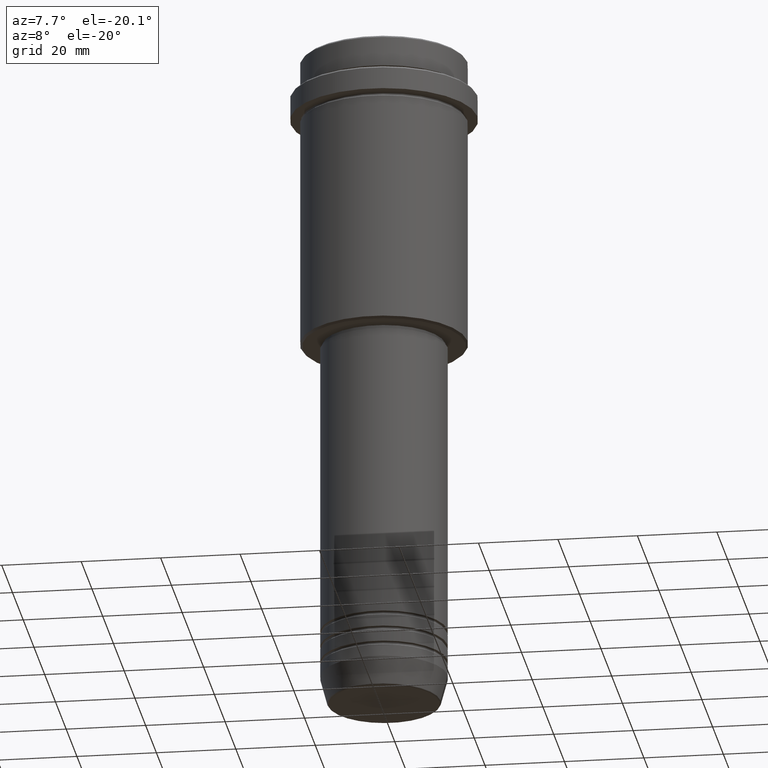
[diagram: clean part render]
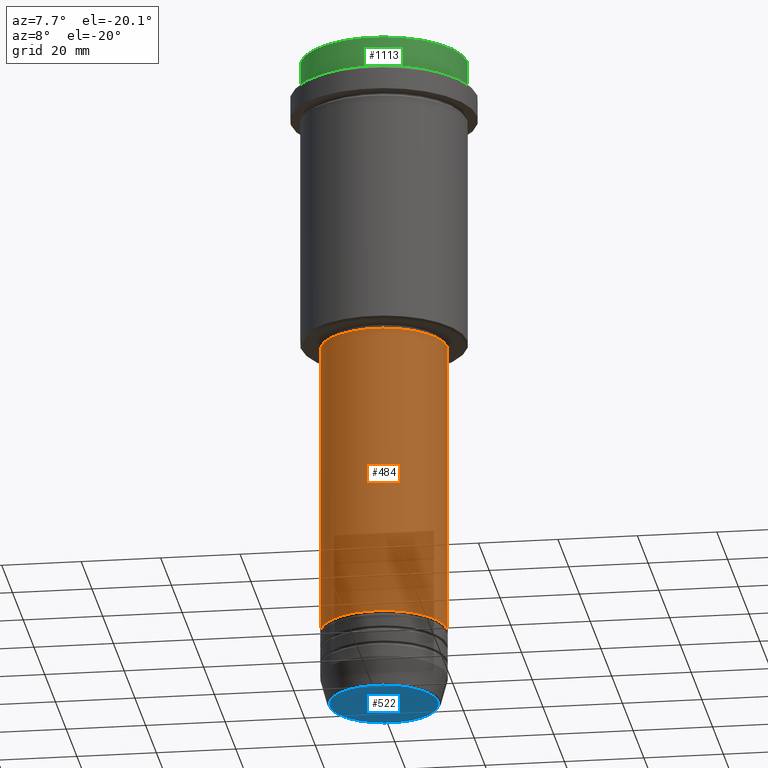
[diagram: same view with three faces highlighted in distinct colors, each labeled with its STEP entity id]
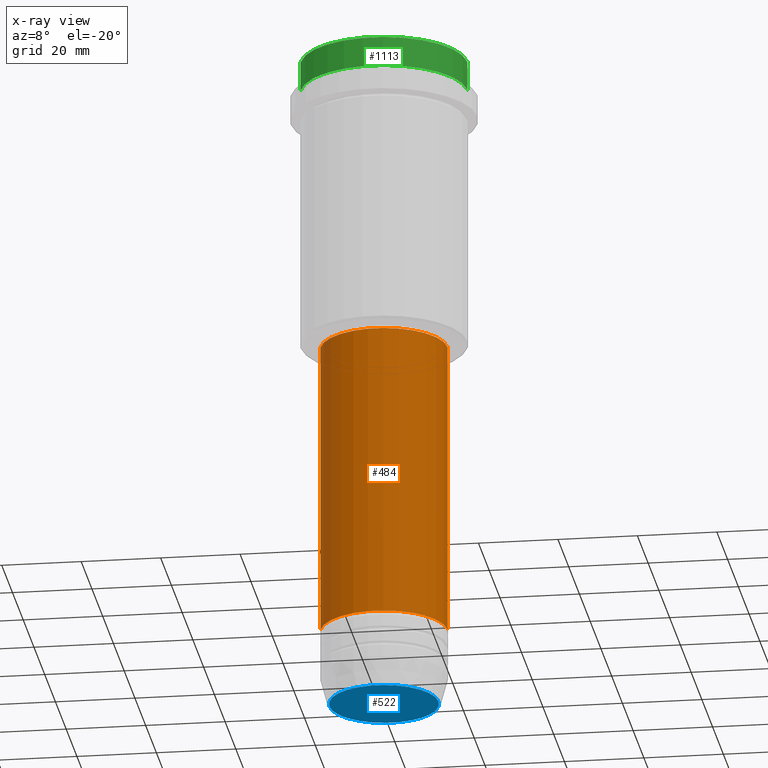
[diagram: x-ray of the same camera — body ghosted, the three highlighted faces saturated]
A machine part, auxiliary view with three faces highlighted in distinct colors.
The next image is the same camera in x-ray (body ghosted, the three faces saturated) — at least one of them is partly hidden behind the body in this view.
Their STEP definitions:

[orange] entity #484 — the highlighted cylindrical surface (partial cylindrical patch) has radius 16 mm, axis along (-0, -0, 1).
#43 = CARTESIAN_POINT ( 'NONE',  ( 16.00000000000000000, 0.000000000000000000, 0.000000000000000000 ) ) ;
#93 = CARTESIAN_POINT ( 'NONE',  ( 0.000000000000000000, 0.000000000000000000, 0.000000000000000000 ) ) ;
#108 = DIRECTION ( 'NONE',  ( 1.000000000000000000, 0.000000000000000000, 0.000000000000000000 ) ) ;
#115 = EDGE_CURVE ( 'NONE', #126, #898, #637, .T. ) ;
#126 = VERTEX_POINT ( 'NONE', #663 ) ;
#159 = DIRECTION ( 'NONE',  ( -0.000000000000000000, -0.000000000000000000, 1.000000000000000000 ) ) ;
#173 = AXIS2_PLACEMENT_3D ( 'NONE', #396, #1164, #630 ) ;
#277 = FACE_OUTER_BOUND ( 'NONE', #464, .T. ) ;
#278 = ORIENTED_EDGE ( 'NONE', *, *, #908, .F. ) ;
#322 = DIRECTION ( 'NONE',  ( -0.000000000000000000, -0.000000000000000000, 1.000000000000000000 ) ) ;
#396 = CARTESIAN_POINT ( 'NONE',  ( 0.000000000000000000, 0.000000000000000000, -76.00000000000001421 ) ) ;
#464 = EDGE_LOOP ( 'NONE', ( #997, #1146, #1352, #278 ) ) ;
#476 = VECTOR ( 'NONE', #159, 1000.000000000000000 ) ;
#484 = ADVANCED_FACE ( 'NONE', ( #277 ), #726, .T. ) ;
#500 = VECTOR ( 'NONE', #1016, 1000.000000000000000 ) ;
#571 = AXIS2_PLACEMENT_3D ( 'NONE', #93, #1099, #108 ) ;
#572 = CIRCLE ( 'NONE', #173, 16.00000000000000355 ) ;
#630 = DIRECTION ( 'NONE',  ( 1.000000000000000000, 0.000000000000000000, 0.000000000000000000 ) ) ;
#637 = CIRCLE ( 'NONE', #750, 16.00000000000000000 ) ;
#663 = CARTESIAN_POINT ( 'NONE',  ( -16.00000000000000000, 1.959434878635765131E-15, -150.9999999999999147 ) ) ;
#719 = VERTEX_POINT ( 'NONE', #1219 ) ;
#726 = CYLINDRICAL_SURFACE ( 'NONE', #571, 16.00000000000000000 ) ;
#750 = AXIS2_PLACEMENT_3D ( 'NONE', #1400, #322, #1388 ) ;
#815 = LINE ( 'NONE', #1145, #476 ) ;
#898 = VERTEX_POINT ( 'NONE', #1281 ) ;
#908 = EDGE_CURVE ( 'NONE', #964, #719, #572, .T. ) ;
#964 = VERTEX_POINT ( 'NONE', #981 ) ;
#981 = CARTESIAN_POINT ( 'NONE',  ( -16.00000000000000355, 1.959434878635765526E-15, -76.00000000000001421 ) ) ;
#997 = ORIENTED_EDGE ( 'NONE', *, *, #1224, .F. ) ;
#1016 = DIRECTION ( 'NONE',  ( -0.000000000000000000, -0.000000000000000000, 1.000000000000000000 ) ) ;
#1025 = LINE ( 'NONE', #43, #500 ) ;
#1099 = DIRECTION ( 'NONE',  ( -0.000000000000000000, -0.000000000000000000, 1.000000000000000000 ) ) ;
#1145 = CARTESIAN_POINT ( 'NONE',  ( -16.00000000000000000, 1.959434878635765131E-15, 0.000000000000000000 ) ) ;
#1146 = ORIENTED_EDGE ( 'NONE', *, *, #115, .T. ) ;
#1164 = DIRECTION ( 'NONE',  ( -0.000000000000000000, -0.000000000000000000, 1.000000000000000000 ) ) ;
#1185 = EDGE_CURVE ( 'NONE', #898, #719, #1025, .T. ) ;
#1219 = CARTESIAN_POINT ( 'NONE',  ( 16.00000000000000355, 0.000000000000000000, -76.00000000000001421 ) ) ;
#1224 = EDGE_CURVE ( 'NONE', #126, #964, #815, .T. ) ;
#1281 = CARTESIAN_POINT ( 'NONE',  ( 16.00000000000000000, 0.000000000000000000, -150.9999999999999147 ) ) ;
#1352 = ORIENTED_EDGE ( 'NONE', *, *, #1185, .T. ) ;
#1388 = DIRECTION ( 'NONE',  ( 1.000000000000000000, 0.000000000000000000, 0.000000000000000000 ) ) ;
#1400 = CARTESIAN_POINT ( 'NONE',  ( 0.000000000000000000, 0.000000000000000000, -150.9999999999999147 ) ) ;

[blue] entity #522 — the highlighted planar face has unit normal (0, -0, 1).
#11 = AXIS2_PLACEMENT_3D ( 'NONE', #1307, #1312, #328 ) ;
#50 = EDGE_LOOP ( 'NONE', ( #628, #245 ) ) ;
#205 = DIRECTION ( 'NONE',  ( 1.000000000000000000, 0.000000000000000000, 0.000000000000000000 ) ) ;
#245 = ORIENTED_EDGE ( 'NONE', *, *, #1007, .T. ) ;
#328 = DIRECTION ( 'NONE',  ( 1.000000000000000000, 0.000000000000000000, 0.000000000000000000 ) ) ;
#331 = FACE_OUTER_BOUND ( 'NONE', #50, .T. ) ;
#340 = PLANE ( 'NONE',  #1134 ) ;
#434 = DIRECTION ( 'NONE',  ( 0.000000000000000000, 0.000000000000000000, -1.000000000000000000 ) ) ;
#438 = CARTESIAN_POINT ( 'NONE',  ( 0.000000000000000000, 0.000000000000000000, -170.0000000000000000 ) ) ;
#522 = ADVANCED_FACE ( 'NONE', ( #331 ), #340, .F. ) ;
#533 = EDGE_CURVE ( 'NONE', #838, #688, #1157, .T. ) ;
#540 = CARTESIAN_POINT ( 'NONE',  ( 0.000000000000000000, 0.000000000000000000, -170.0000000000000000 ) ) ;
#628 = ORIENTED_EDGE ( 'NONE', *, *, #533, .T. ) ;
#688 = VERTEX_POINT ( 'NONE', #1329 ) ;
#714 = AXIS2_PLACEMENT_3D ( 'NONE', #540, #434, #205 ) ;
#799 = CIRCLE ( 'NONE', #11, 13.74069215899265828 ) ;
#838 = VERTEX_POINT ( 'NONE', #942 ) ;
#873 = DIRECTION ( 'NONE',  ( 0.000000000000000000, -0.000000000000000000, 1.000000000000000000 ) ) ;
#942 = CARTESIAN_POINT ( 'NONE',  ( 13.74069215899265828, 0.000000000000000000, -170.0000000000000000 ) ) ;
#1007 = EDGE_CURVE ( 'NONE', #688, #838, #799, .T. ) ;
#1134 = AXIS2_PLACEMENT_3D ( 'NONE', #438, #873, #1417 ) ;
#1157 = CIRCLE ( 'NONE', #714, 13.74069215899265828 ) ;
#1307 = CARTESIAN_POINT ( 'NONE',  ( 0.000000000000000000, 0.000000000000000000, -170.0000000000000000 ) ) ;
#1312 = DIRECTION ( 'NONE',  ( 0.000000000000000000, 0.000000000000000000, -1.000000000000000000 ) ) ;
#1329 = CARTESIAN_POINT ( 'NONE',  ( -13.74069215899265828, 1.712322416342415986E-15, -170.0000000000000000 ) ) ;
#1417 = DIRECTION ( 'NONE',  ( 1.000000000000000000, 0.000000000000000000, 0.000000000000000000 ) ) ;

[green] entity #1113 — the highlighted cylindrical surface (partial cylindrical patch) has radius 21 mm, axis along (-0, -0, 1).
#22 = DIRECTION ( 'NONE',  ( -0.000000000000000000, -0.000000000000000000, 1.000000000000000000 ) ) ;
#37 = EDGE_CURVE ( 'NONE', #872, #1192, #611, .T. ) ;
#49 = CARTESIAN_POINT ( 'NONE',  ( 21.00000000000000000, 0.000000000000000000, -0.5000000000000108802 ) ) ;
#55 = CIRCLE ( 'NONE', #979, 21.00000000000000000 ) ;
#78 = CARTESIAN_POINT ( 'NONE',  ( -21.00000000000000000, 2.571758278209441661E-15, 0.000000000000000000 ) ) ;
#96 = DIRECTION ( 'NONE',  ( -0.000000000000000000, -0.000000000000000000, 1.000000000000000000 ) ) ;
#122 = CIRCLE ( 'NONE', #935, 21.00000000000000000 ) ;
#150 = DIRECTION ( 'NONE',  ( 0.000000000000000000, 0.000000000000000000, -1.000000000000000000 ) ) ;
#177 = CARTESIAN_POINT ( 'NONE',  ( 21.00000000000000000, 0.000000000000000000, 0.000000000000000000 ) ) ;
#234 = DIRECTION ( 'NONE',  ( 1.000000000000000000, 0.000000000000000000, 0.000000000000000000 ) ) ;
#254 = CARTESIAN_POINT ( 'NONE',  ( 0.000000000000000000, 0.000000000000000000, 0.000000000000000000 ) ) ;
#392 = EDGE_CURVE ( 'NONE', #826, #1105, #615, .T. ) ;
#402 = VECTOR ( 'NONE', #493, 1000.000000000000000 ) ;
#493 = DIRECTION ( 'NONE',  ( -0.000000000000000000, -0.000000000000000000, 1.000000000000000000 ) ) ;
#502 = CARTESIAN_POINT ( 'NONE',  ( -21.00000000000000000, 2.571758278209441661E-15, -7.999999999999998224 ) ) ;
#531 = DIRECTION ( 'NONE',  ( 1.000000000000000000, 0.000000000000000000, 0.000000000000000000 ) ) ;
#585 = CARTESIAN_POINT ( 'NONE',  ( 0.000000000000000000, 0.000000000000000000, -0.5000000000000108802 ) ) ;
#588 = DIRECTION ( 'NONE',  ( 1.000000000000000000, 0.000000000000000000, 0.000000000000000000 ) ) ;
#605 = CYLINDRICAL_SURFACE ( 'NONE', #914, 21.00000000000000000 ) ;
#611 = LINE ( 'NONE', #177, #1201 ) ;
#615 = LINE ( 'NONE', #78, #402 ) ;
#674 = EDGE_CURVE ( 'NONE', #1192, #1105, #122, .T. ) ;
#706 = DIRECTION ( 'NONE',  ( -0.000000000000000000, -0.000000000000000000, 1.000000000000000000 ) ) ;
#716 = CARTESIAN_POINT ( 'NONE',  ( -21.00000000000000000, 2.571758278209441661E-15, -0.5000000000000108802 ) ) ;
#769 = ORIENTED_EDGE ( 'NONE', *, *, #674, .T. ) ;
#826 = VERTEX_POINT ( 'NONE', #502 ) ;
#872 = VERTEX_POINT ( 'NONE', #1154 ) ;
#914 = AXIS2_PLACEMENT_3D ( 'NONE', #254, #22, #588 ) ;
#919 = ORIENTED_EDGE ( 'NONE', *, *, #1076, .T. ) ;
#929 = FACE_OUTER_BOUND ( 'NONE', #1347, .T. ) ;
#935 = AXIS2_PLACEMENT_3D ( 'NONE', #585, #150, #234 ) ;
#979 = AXIS2_PLACEMENT_3D ( 'NONE', #1070, #96, #531 ) ;
#1070 = CARTESIAN_POINT ( 'NONE',  ( 0.000000000000000000, 0.000000000000000000, -7.999999999999998224 ) ) ;
#1076 = EDGE_CURVE ( 'NONE', #826, #872, #55, .T. ) ;
#1105 = VERTEX_POINT ( 'NONE', #716 ) ;
#1113 = ADVANCED_FACE ( 'NONE', ( #929 ), #605, .T. ) ;
#1154 = CARTESIAN_POINT ( 'NONE',  ( 21.00000000000000000, 0.000000000000000000, -7.999999999999998224 ) ) ;
#1192 = VERTEX_POINT ( 'NONE', #49 ) ;
#1201 = VECTOR ( 'NONE', #706, 1000.000000000000000 ) ;
#1217 = ORIENTED_EDGE ( 'NONE', *, *, #392, .F. ) ;
#1226 = ORIENTED_EDGE ( 'NONE', *, *, #37, .T. ) ;
#1347 = EDGE_LOOP ( 'NONE', ( #1217, #919, #1226, #769 ) ) ;